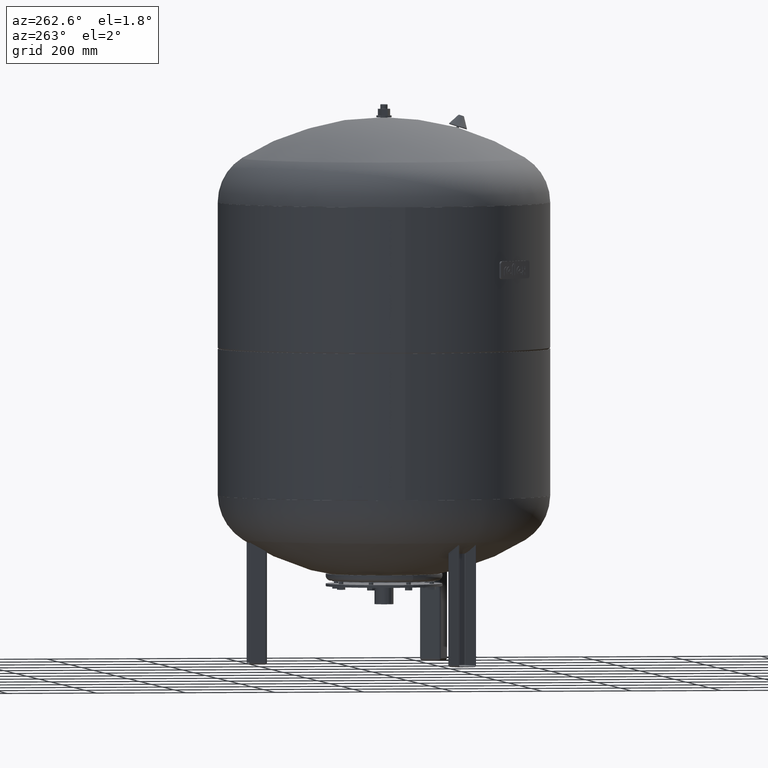
[diagram: clean part render]
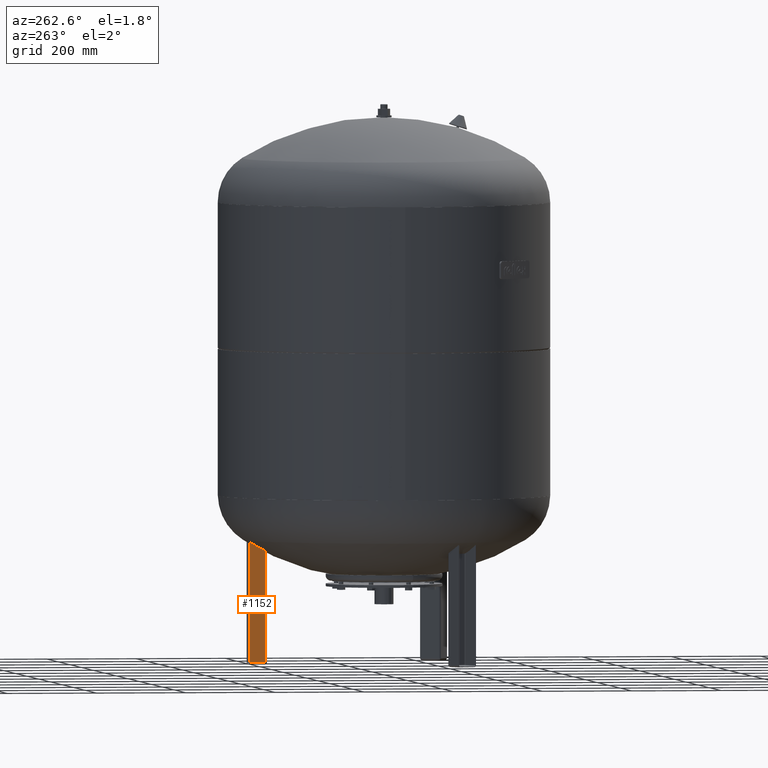
[diagram: same view with one face highlighted and labeled with its STEP entity id]
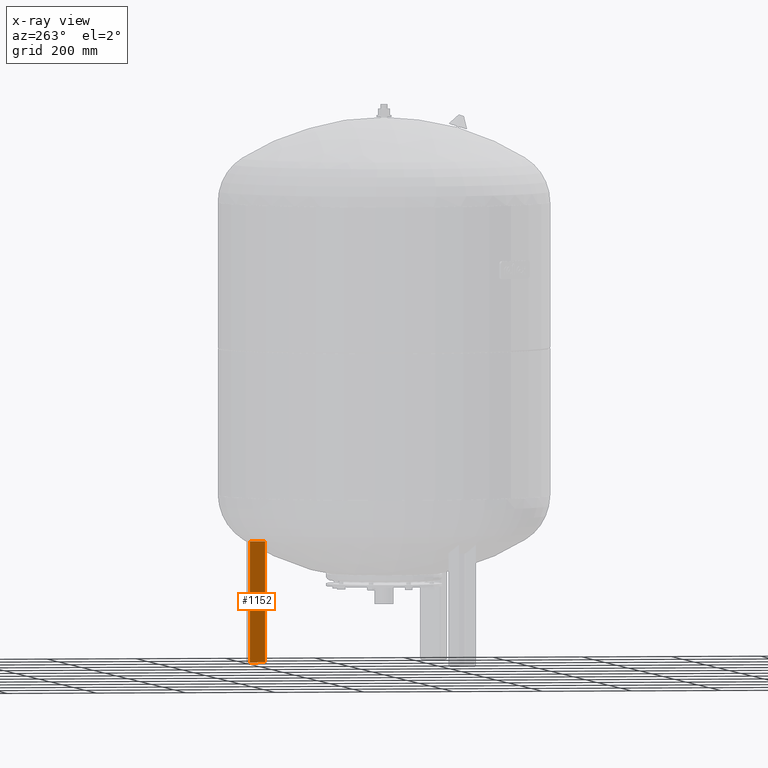
[diagram: x-ray of the same camera — body ghosted, the highlighted face saturated]
A machine part, auxiliary view. The second image highlights one B-rep face of the part: STEP entity #1152.
The next image is the same camera in x-ray: the body ghosted, the highlighted face saturated — about 0% of this face is hidden behind the body in this view.
In plain terms, the highlighted planar face has unit normal (-1, 0, 0).
Its self-contained STEP definition (entity closure, byte-faithful):
#250=CARTESIAN_POINT('',(-25.0,304.0,274.0));
#251=VERTEX_POINT('',#250);
#259=CARTESIAN_POINT('',(-24.999999999999993,270.0,274.0));
#260=VERTEX_POINT('',#259);
#261=CARTESIAN_POINT('',(-24.999999999999993,270.0,274.0));
#262=DIRECTION('',(0.0,1.0,0.0));
#263=VECTOR('',#262,34.0);
#264=LINE('',#261,#263);
#265=EDGE_CURVE('',#260,#251,#264,.T.);
#695=CARTESIAN_POINT('',(-25.000000000000004,304.0,5.000000000000004));
#696=VERTEX_POINT('',#695);
#723=CARTESIAN_POINT('',(-25.000000000000004,304.0,5.000000000000004));
#724=DIRECTION('',(0.0,0.0,1.0));
#725=VECTOR('',#724,269.0);
#726=LINE('',#723,#725);
#727=EDGE_CURVE('',#696,#251,#726,.T.);
#887=CARTESIAN_POINT('',(-25.0,270.0,5.000000000000004));
#888=VERTEX_POINT('',#887);
#896=CARTESIAN_POINT('',(-25.0,270.0,5.000000000000004));
#897=DIRECTION('',(0.0,1.0,0.0));
#898=VECTOR('',#897,34.0);
#899=LINE('',#896,#898);
#900=EDGE_CURVE('',#888,#696,#899,.T.);
#1022=CARTESIAN_POINT('',(-25.0,270.0,5.000000000000004));
#1023=DIRECTION('',(0.0,0.0,1.0));
#1024=VECTOR('',#1023,269.0);
#1025=LINE('',#1022,#1024);
#1026=EDGE_CURVE('',#888,#260,#1025,.T.);
#1141=CARTESIAN_POINT('',(-25.0,265.0,4.592425E-015));
#1142=DIRECTION('',(-1.0,0.0,0.0));
#1143=DIRECTION('',(0.0,-1.0,0.0));
#1144=AXIS2_PLACEMENT_3D('',#1141,#1142,#1143);
#1145=PLANE('',#1144);
#1146=ORIENTED_EDGE('',*,*,#727,.F.);
#1147=ORIENTED_EDGE('',*,*,#900,.F.);
#1148=ORIENTED_EDGE('',*,*,#1026,.T.);
#1149=ORIENTED_EDGE('',*,*,#265,.T.);
#1150=EDGE_LOOP('',(#1146,#1147,#1148,#1149));
#1151=FACE_OUTER_BOUND('',#1150,.T.);
#1152=ADVANCED_FACE('',(#1151),#1145,.T.);